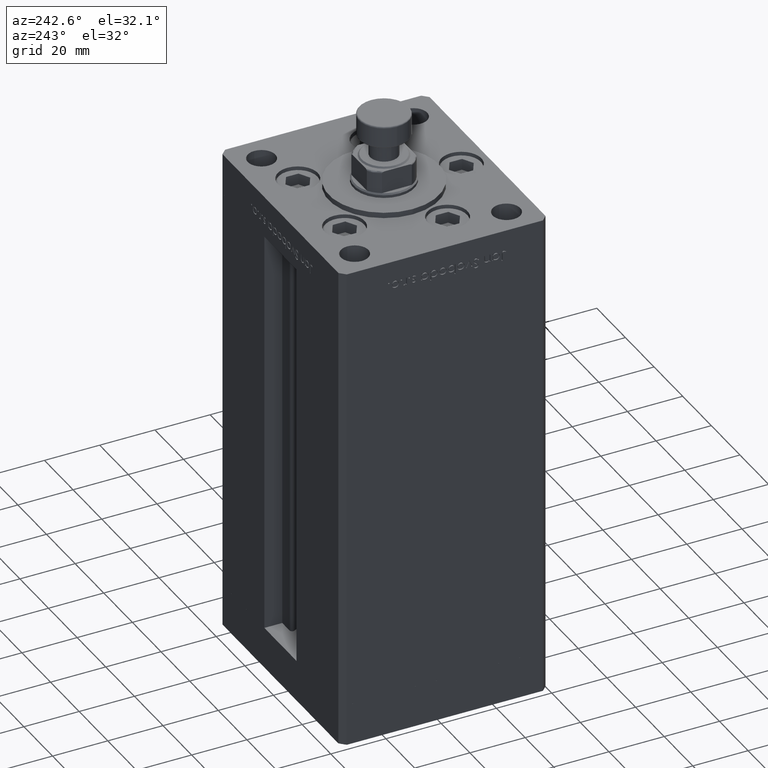
[diagram: clean part render]
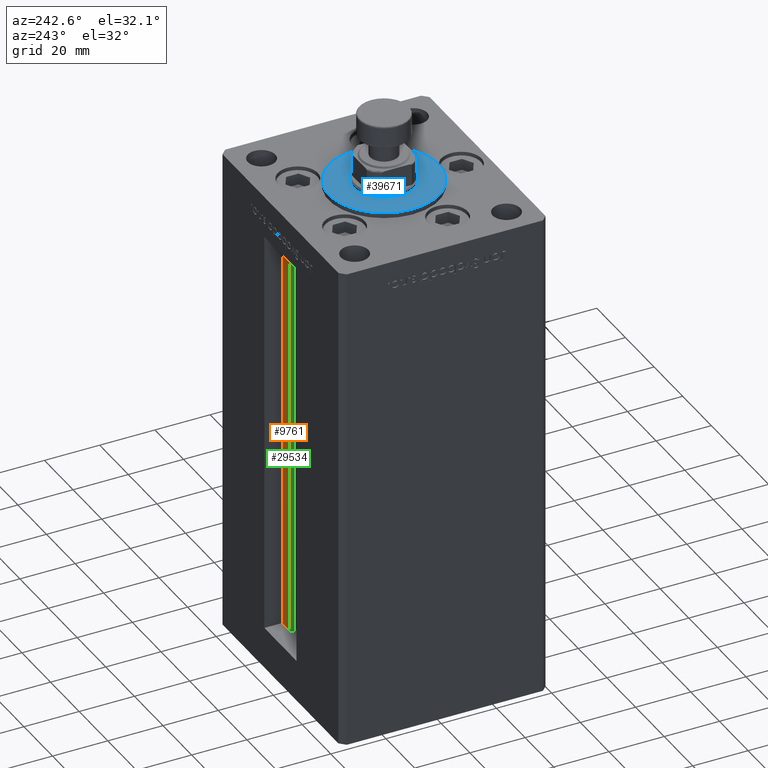
[diagram: same view with three faces highlighted in distinct colors, each labeled with its STEP entity id]
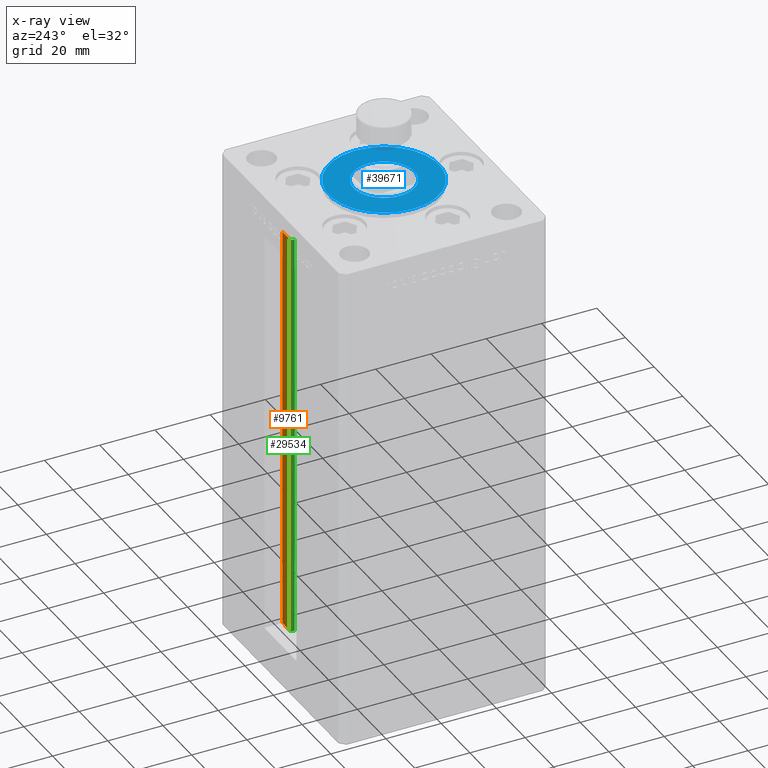
[diagram: x-ray of the same camera — body ghosted, the three highlighted faces saturated]
A machine part, auxiliary view with three faces highlighted in distinct colors.
The next image is the same camera in x-ray (body ghosted, the three faces saturated) — at least one of them is partly hidden behind the body in this view.
Their STEP definitions:

[orange] entity #9761 — the highlighted planar face has unit normal (0, -1, 0).
#343 = FACE_OUTER_BOUND ( 'NONE', #44181, .T. ) ;
#916 = CARTESIAN_POINT ( 'NONE',  ( 6.183333333333999704, 30.99999999999999289, 0.000000000000000000 ) ) ;
#1504 = CARTESIAN_POINT ( 'NONE',  ( 0.000000000000000000, 30.99999999999999289, 148.5000000000000000 ) ) ;
#4869 = DIRECTION ( 'NONE',  ( 0.000000000000000000, -1.000000000000000000, 0.000000000000000000 ) ) ;
#5698 = CARTESIAN_POINT ( 'NONE',  ( 11.25000000000000000, 30.99999999999999289, 0.000000000000000000 ) ) ;
#6305 = LINE ( 'NONE', #1504, #48027 ) ;
#7427 = LINE ( 'NONE', #47425, #36310 ) ;
#7570 = ORIENTED_EDGE ( 'NONE', *, *, #51796, .F. ) ;
#8091 = EDGE_CURVE ( 'NONE', #28904, #50720, #7427, .T. ) ;
#9761 = ADVANCED_FACE ( 'NONE', ( #343 ), #25362, .F. ) ;
#16600 = DIRECTION ( 'NONE',  ( 0.000000000000000000, -0.000000000000000000, -1.000000000000000000 ) ) ;
#17669 = ORIENTED_EDGE ( 'NONE', *, *, #49740, .T. ) ;
#18975 = ORIENTED_EDGE ( 'NONE', *, *, #21437, .F. ) ;
#21437 = EDGE_CURVE ( 'NONE', #26615, #28904, #28883, .T. ) ;
#22015 = DIRECTION ( 'NONE',  ( -1.000000000000000000, 0.000000000000000000, 0.000000000000000000 ) ) ;
#23673 = DIRECTION ( 'NONE',  ( -0.000000000000000000, -0.000000000000000000, 1.000000000000000000 ) ) ;
#24345 = CARTESIAN_POINT ( 'NONE',  ( 6.183333333333999704, 30.99999999999999289, 0.000000000000000000 ) ) ;
#25362 = PLANE ( 'NONE',  #27871 ) ;
#25943 = DIRECTION ( 'NONE',  ( -0.000000000000000000, -0.000000000000000000, 1.000000000000000000 ) ) ;
#26615 = VERTEX_POINT ( 'NONE', #24345 ) ;
#27871 = AXIS2_PLACEMENT_3D ( 'NONE', #49393, #4869, #16600 ) ;
#28883 = LINE ( 'NONE', #916, #37176 ) ;
#28904 = VERTEX_POINT ( 'NONE', #5698 ) ;
#29954 = CARTESIAN_POINT ( 'NONE',  ( 6.183333333333999704, 30.99999999999999289, 0.000000000000000000 ) ) ;
#31450 = CARTESIAN_POINT ( 'NONE',  ( 11.25000000000000000, 30.99999999999999289, 148.5000000000000000 ) ) ;
#35305 = VERTEX_POINT ( 'NONE', #43223 ) ;
#36310 = VECTOR ( 'NONE', #23673, 1000.000000000000000 ) ;
#37176 = VECTOR ( 'NONE', #49159, 1000.000000000000000 ) ;
#42755 = LINE ( 'NONE', #29954, #50593 ) ;
#43223 = CARTESIAN_POINT ( 'NONE',  ( 6.183333333333999704, 30.99999999999999289, 148.5000000000000000 ) ) ;
#44181 = EDGE_LOOP ( 'NONE', ( #48716, #18975, #17669, #7570 ) ) ;
#47425 = CARTESIAN_POINT ( 'NONE',  ( 11.25000000000000000, 30.99999999999999289, 0.000000000000000000 ) ) ;
#48027 = VECTOR ( 'NONE', #22015, 1000.000000000000000 ) ;
#48716 = ORIENTED_EDGE ( 'NONE', *, *, #8091, .F. ) ;
#49159 = DIRECTION ( 'NONE',  ( 1.000000000000000000, 0.000000000000000000, 0.000000000000000000 ) ) ;
#49393 = CARTESIAN_POINT ( 'NONE',  ( 6.183333333333999704, 30.99999999999999289, 0.000000000000000000 ) ) ;
#49740 = EDGE_CURVE ( 'NONE', #26615, #35305, #42755, .T. ) ;
#50593 = VECTOR ( 'NONE', #25943, 1000.000000000000000 ) ;
#50720 = VERTEX_POINT ( 'NONE', #31450 ) ;
#51796 = EDGE_CURVE ( 'NONE', #50720, #35305, #6305, .T. ) ;

[blue] entity #39671 — the highlighted planar face has unit normal (0, 0, 1).
#2937 = DIRECTION ( 'NONE',  ( 0.000000000000000000, 0.000000000000000000, 1.000000000000000000 ) ) ;
#3386 = CIRCLE ( 'NONE', #16995, 20.00000000000000000 ) ;
#6332 = ORIENTED_EDGE ( 'NONE', *, *, #31560, .F. ) ;
#7152 = CARTESIAN_POINT ( 'NONE',  ( 0.000000000000000000, -6.938893903907228378E-15, 2.000000000000000000 ) ) ;
#7963 = VERTEX_POINT ( 'NONE', #20859 ) ;
#10478 = CIRCLE ( 'NONE', #40253, 11.00000000000000000 ) ;
#11126 = EDGE_CURVE ( 'NONE', #29567, #38104, #15155, .T. ) ;
#11702 = CARTESIAN_POINT ( 'NONE',  ( 0.000000000000000000, -6.938893903907228378E-15, 2.000000000000000000 ) ) ;
#13276 = ORIENTED_EDGE ( 'NONE', *, *, #11126, .T. ) ;
#13469 = ORIENTED_EDGE ( 'NONE', *, *, #28761, .T. ) ;
#13523 = AXIS2_PLACEMENT_3D ( 'NONE', #44669, #32147, #16694 ) ;
#13936 = ORIENTED_EDGE ( 'NONE', *, *, #46884, .F. ) ;
#14142 = CARTESIAN_POINT ( 'NONE',  ( 0.000000000000000000, -6.938893903907228378E-15, 2.000000000000000000 ) ) ;
#15155 = CIRCLE ( 'NONE', #47494, 20.00000000000000000 ) ;
#15406 = DIRECTION ( 'NONE',  ( 0.000000000000000000, 0.000000000000000000, 1.000000000000000000 ) ) ;
#15471 = AXIS2_PLACEMENT_3D ( 'NONE', #23896, #15406, #35117 ) ;
#16694 = DIRECTION ( 'NONE',  ( 1.000000000000000000, 0.000000000000000000, 0.000000000000000000 ) ) ;
#16995 = AXIS2_PLACEMENT_3D ( 'NONE', #7152, #27908, #44431 ) ;
#18679 = DIRECTION ( 'NONE',  ( 1.000000000000000000, 0.000000000000000000, 0.000000000000000000 ) ) ;
#19390 = PLANE ( 'NONE',  #15471 ) ;
#20859 = CARTESIAN_POINT ( 'NONE',  ( -11.00000000000000000, -5.591782424845139381E-15, 2.000000000000000000 ) ) ;
#23375 = FACE_BOUND ( 'NONE', #43737, .T. ) ;
#23896 = CARTESIAN_POINT ( 'NONE',  ( 0.000000000000000000, -6.938893903907228378E-15, 2.000000000000000000 ) ) ;
#25970 = CARTESIAN_POINT ( 'NONE',  ( 11.00000000000000000, -6.938893903907228378E-15, 2.000000000000000000 ) ) ;
#27624 = FACE_OUTER_BOUND ( 'NONE', #35202, .T. ) ;
#27908 = DIRECTION ( 'NONE',  ( 0.000000000000000000, 0.000000000000000000, 1.000000000000000000 ) ) ;
#28761 = EDGE_CURVE ( 'NONE', #38104, #29567, #3386, .T. ) ;
#29567 = VERTEX_POINT ( 'NONE', #43414 ) ;
#31560 = EDGE_CURVE ( 'NONE', #46119, #7963, #42470, .T. ) ;
#32147 = DIRECTION ( 'NONE',  ( 0.000000000000000000, 0.000000000000000000, 1.000000000000000000 ) ) ;
#34928 = DIRECTION ( 'NONE',  ( 0.000000000000000000, 0.000000000000000000, 1.000000000000000000 ) ) ;
#35117 = DIRECTION ( 'NONE',  ( 1.000000000000000000, 0.000000000000000000, -0.000000000000000000 ) ) ;
#35202 = EDGE_LOOP ( 'NONE', ( #13276, #13469 ) ) ;
#38104 = VERTEX_POINT ( 'NONE', #39420 ) ;
#39420 = CARTESIAN_POINT ( 'NONE',  ( 20.00000000000000000, -4.489600305612522259E-15, 2.000000000000000000 ) ) ;
#39671 = ADVANCED_FACE ( 'NONE', ( #23375, #27624 ), #19390, .T. ) ;
#40215 = DIRECTION ( 'NONE',  ( 1.000000000000000000, 0.000000000000000000, 0.000000000000000000 ) ) ;
#40253 = AXIS2_PLACEMENT_3D ( 'NONE', #14142, #34928, #18679 ) ;
#42470 = CIRCLE ( 'NONE', #13523, 11.00000000000000000 ) ;
#43414 = CARTESIAN_POINT ( 'NONE',  ( -20.00000000000000000, -6.938893903907228378E-15, 2.000000000000000000 ) ) ;
#43737 = EDGE_LOOP ( 'NONE', ( #6332, #13936 ) ) ;
#44431 = DIRECTION ( 'NONE',  ( 1.000000000000000000, 0.000000000000000000, 0.000000000000000000 ) ) ;
#44669 = CARTESIAN_POINT ( 'NONE',  ( 0.000000000000000000, -6.938893903907228378E-15, 2.000000000000000000 ) ) ;
#46119 = VERTEX_POINT ( 'NONE', #25970 ) ;
#46884 = EDGE_CURVE ( 'NONE', #7963, #46119, #10478, .T. ) ;
#47494 = AXIS2_PLACEMENT_3D ( 'NONE', #11702, #2937, #40215 ) ;

[green] entity #29534 — the highlighted cylindrical surface (edge-blend (fillet) strip) has radius 0.9333 mm, axis along (0, 0, 1).
#43 = VERTEX_POINT ( 'NONE', #6651 ) ;
#4225 = VERTEX_POINT ( 'NONE', #39058 ) ;
#4288 = DIRECTION ( 'NONE',  ( 1.000000000000000000, 0.000000000000000000, 0.000000000000000000 ) ) ;
#6651 = CARTESIAN_POINT ( 'NONE',  ( 5.375042956467944499, 29.59999999999899245, 148.5000000000000000 ) ) ;
#7573 = EDGE_LOOP ( 'NONE', ( #42103, #51530, #38982, #12205 ) ) ;
#9594 = DIRECTION ( 'NONE',  ( 1.000000000000000000, 0.000000000000000000, 0.000000000000000000 ) ) ;
#9951 = EDGE_CURVE ( 'NONE', #43, #35305, #25347, .T. ) ;
#10088 = EDGE_CURVE ( 'NONE', #4225, #26615, #27039, .T. ) ;
#12205 = ORIENTED_EDGE ( 'NONE', *, *, #9951, .T. ) ;
#13849 = CARTESIAN_POINT ( 'NONE',  ( 6.183333333333999704, 30.06666666666599141, 0.000000000000000000 ) ) ;
#15483 = DIRECTION ( 'NONE',  ( -0.000000000000000000, -0.000000000000000000, 1.000000000000000000 ) ) ;
#18966 = LINE ( 'NONE', #51234, #33749 ) ;
#19678 = DIRECTION ( 'NONE',  ( 1.000000000000000000, 0.000000000000000000, 0.000000000000000000 ) ) ;
#19934 = CYLINDRICAL_SURFACE ( 'NONE', #47670, 0.9333333333340015914 ) ;
#20190 = DIRECTION ( 'NONE',  ( -0.000000000000000000, -0.000000000000000000, 1.000000000000000000 ) ) ;
#21101 = AXIS2_PLACEMENT_3D ( 'NONE', #13849, #34364, #9594 ) ;
#21906 = EDGE_CURVE ( 'NONE', #4225, #43, #18966, .T. ) ;
#24345 = CARTESIAN_POINT ( 'NONE',  ( 6.183333333333999704, 30.99999999999999289, 0.000000000000000000 ) ) ;
#25347 = CIRCLE ( 'NONE', #29581, 0.9333333333340015914 ) ;
#25943 = DIRECTION ( 'NONE',  ( -0.000000000000000000, -0.000000000000000000, 1.000000000000000000 ) ) ;
#26615 = VERTEX_POINT ( 'NONE', #24345 ) ;
#27039 = CIRCLE ( 'NONE', #21101, 0.9333333333340015914 ) ;
#29534 = ADVANCED_FACE ( 'NONE', ( #43922 ), #19934, .T. ) ;
#29581 = AXIS2_PLACEMENT_3D ( 'NONE', #48790, #32770, #4288 ) ;
#29954 = CARTESIAN_POINT ( 'NONE',  ( 6.183333333333999704, 30.99999999999999289, 0.000000000000000000 ) ) ;
#31669 = CARTESIAN_POINT ( 'NONE',  ( 6.183333333333999704, 30.06666666666599141, 0.000000000000000000 ) ) ;
#32770 = DIRECTION ( 'NONE',  ( 0.000000000000000000, 0.000000000000000000, -1.000000000000000000 ) ) ;
#33749 = VECTOR ( 'NONE', #15483, 1000.000000000000000 ) ;
#34364 = DIRECTION ( 'NONE',  ( -0.000000000000000000, -0.000000000000000000, -1.000000000000000000 ) ) ;
#35305 = VERTEX_POINT ( 'NONE', #43223 ) ;
#38982 = ORIENTED_EDGE ( 'NONE', *, *, #21906, .T. ) ;
#39058 = CARTESIAN_POINT ( 'NONE',  ( 5.375042956467943611, 29.59999999999899245, 0.000000000000000000 ) ) ;
#42103 = ORIENTED_EDGE ( 'NONE', *, *, #49740, .F. ) ;
#42755 = LINE ( 'NONE', #29954, #50593 ) ;
#43223 = CARTESIAN_POINT ( 'NONE',  ( 6.183333333333999704, 30.99999999999999289, 148.5000000000000000 ) ) ;
#43922 = FACE_OUTER_BOUND ( 'NONE', #7573, .T. ) ;
#47670 = AXIS2_PLACEMENT_3D ( 'NONE', #31669, #20190, #19678 ) ;
#48790 = CARTESIAN_POINT ( 'NONE',  ( 6.183333333333999704, 30.06666666666599141, 148.5000000000000000 ) ) ;
#49740 = EDGE_CURVE ( 'NONE', #26615, #35305, #42755, .T. ) ;
#50593 = VECTOR ( 'NONE', #25943, 1000.000000000000000 ) ;
#51234 = CARTESIAN_POINT ( 'NONE',  ( 5.375042956467943611, 29.59999999999899245, 0.000000000000000000 ) ) ;
#51530 = ORIENTED_EDGE ( 'NONE', *, *, #10088, .F. ) ;